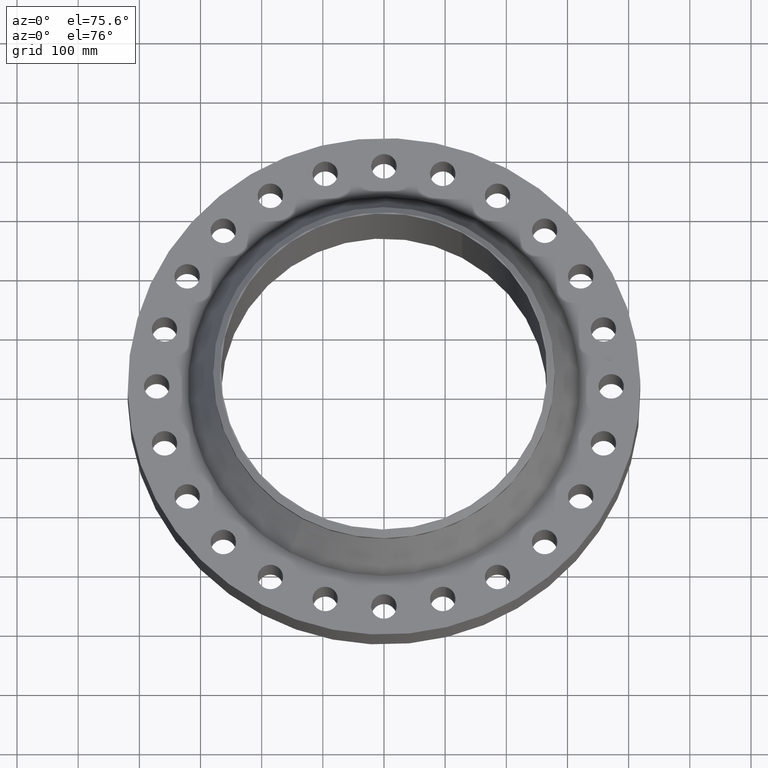
[diagram: clean part render]
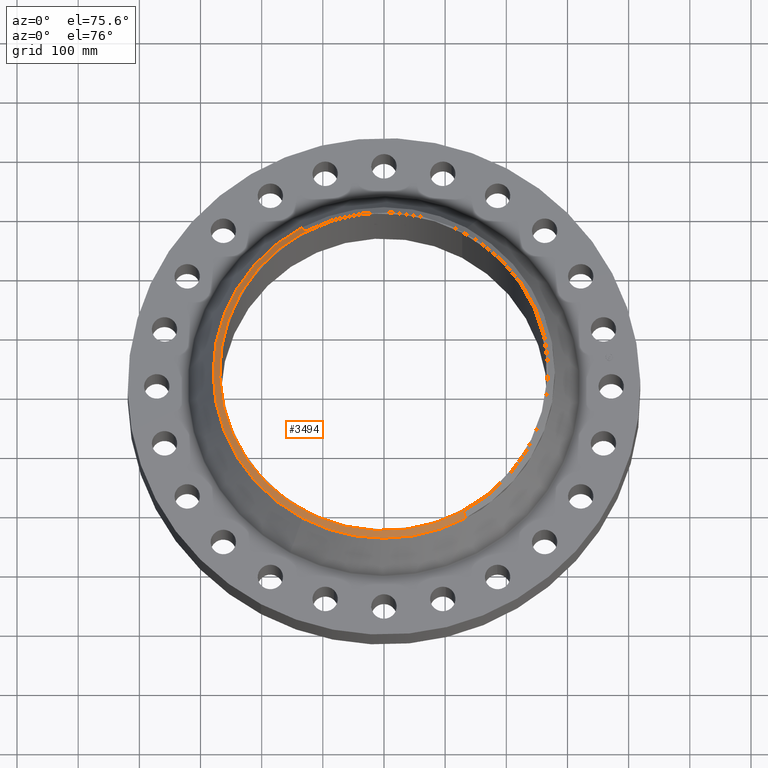
[diagram: same view with one face highlighted and labeled with its STEP entity id]
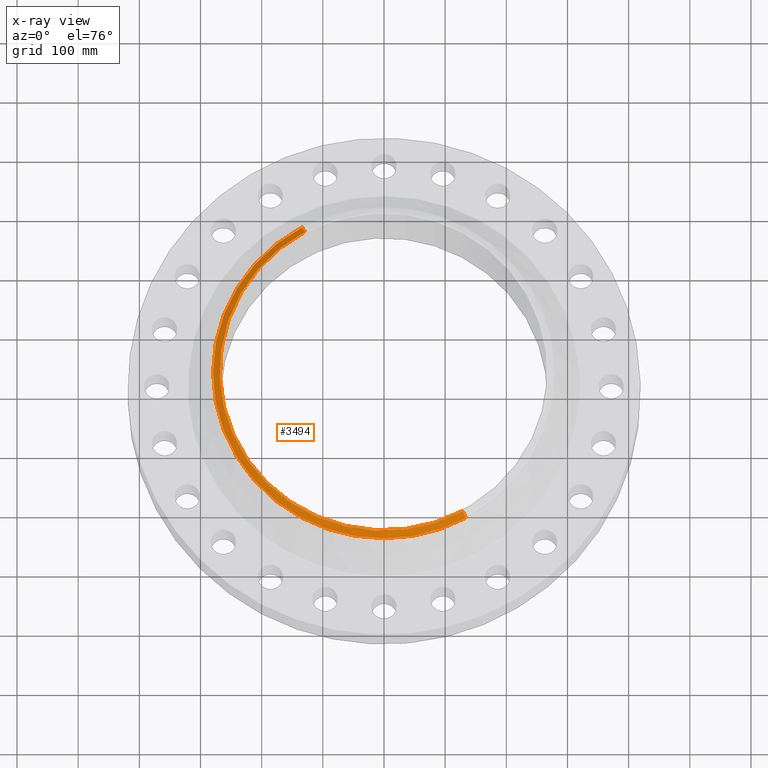
[diagram: x-ray of the same camera — body ghosted, the highlighted face saturated]
A machine part, auxiliary view. The second image highlights one B-rep face of the part: STEP entity #3494.
The next image is the same camera in x-ray: the body ghosted, the highlighted face saturated — about 0% of this face is hidden behind the body in this view.
In plain terms, the highlighted conical surface has half-angle 52.5 deg.
Its self-contained STEP definition (entity closure, byte-faithful):
#2822=AXIS2_PLACEMENT_3D('Circle Axis2P3D',#2820,#2821,$) ;
#2861=AXIS2_PLACEMENT_3D('Circle Axis2P3D',#2859,#2860,$) ;
#3453=AXIS2_PLACEMENT_3D('Circle Axis2P3D',#3451,#3452,$) ;
#3475=AXIS2_PLACEMENT_3D('Cone Axis2P3D',#3472,#3473,#3474) ;
#2817=CARTESIAN_POINT('Vertex',(-5.27368092465,-9.65340818079,6.1067559539)) ;
#2820=CARTESIAN_POINT('Axis2P3D Location',(0.,0.,6.1067559539)) ;
#2824=CARTESIAN_POINT('Vertex',(-5.27368092465,9.65340818079,6.1067559539)) ;
#2856=CARTESIAN_POINT('Vertex',(5.27368092465,-9.65340818079,6.1067559539)) ;
#2859=CARTESIAN_POINT('Axis2P3D Location',(0.,0.,6.1067559539)) ;
#3446=CARTESIAN_POINT('Vertex',(5.07171819777,-9.283717889,6.43000000002)) ;
#3448=CARTESIAN_POINT('Vertex',(-5.07171819777,9.28371788899,6.43000000003)) ;
#3451=CARTESIAN_POINT('Axis2P3D Location',(3.08546189473E-011,2.19317127888E-012,6.43000000003)) ;
#3472=CARTESIAN_POINT('Axis2P3D Location',(0.,0.,6.43000000003)) ;
#3477=CARTESIAN_POINT('Line Origine',(5.17269956122,-9.46856303491,6.26837797697)) ;
#3482=CARTESIAN_POINT('Line Origine',(-5.17269956122,9.46856303491,6.26837797697)) ;
#2821=DIRECTION('Axis2P3D Direction',(-0.,0.,-0.0393700787402)) ;
#2860=DIRECTION('Axis2P3D Direction',(-0.,0.,-0.0393700787402)) ;
#3452=DIRECTION('Axis2P3D Direction',(0.,0.,-0.0393700787402)) ;
#3473=DIRECTION('Axis2P3D Direction',(-0.,-0.,-0.0393700787402)) ;
#3474=DIRECTION('Axis2P3D XDirection',(0.0188750212049,-0.0345504945626,0.)) ;
#3478=DIRECTION('Vector Direction',(0.014974561121,-0.02741075027,-0.023966985394)) ;
#3483=DIRECTION('Vector Direction',(-0.014974561121,0.02741075027,-0.023966985394)) ;
#3479=VECTOR('Line Direction',#3478,0.0393700787402) ;
#3484=VECTOR('Line Direction',#3483,0.0393700787402) ;
#3488=ORIENTED_EDGE('',*,*,#3481,.F.) ;
#3489=ORIENTED_EDGE('',*,*,#3455,.F.) ;
#3490=ORIENTED_EDGE('',*,*,#3486,.T.) ;
#3491=ORIENTED_EDGE('',*,*,#2826,.T.) ;
#3492=ORIENTED_EDGE('',*,*,#2863,.F.) ;
#3494=ADVANCED_FACE('PartBody',(#3493),#3476,.T.) ;
#2823=CIRCLE('generated circle',#2822,11.) ;
#2862=CIRCLE('generated circle',#2861,11.) ;
#3454=CIRCLE('generated circle',#3453,10.5787401575) ;
#3476=CONICAL_SURFACE('Cone',#3475,10.5787401575,0.916297857297) ;
#2826=EDGE_CURVE('',#2825,#2818,#2823,.F.) ;
#2863=EDGE_CURVE('',#2857,#2818,#2862,.T.) ;
#3455=EDGE_CURVE('',#3449,#3447,#3454,.F.) ;
#3481=EDGE_CURVE('',#3447,#2857,#3480,.T.) ;
#3486=EDGE_CURVE('',#3449,#2825,#3485,.T.) ;
#3487=EDGE_LOOP('',(#3488,#3489,#3490,#3491,#3492)) ;
#3493=FACE_OUTER_BOUND('',#3487,.T.) ;
#3480=LINE('Line',#3477,#3479) ;
#3485=LINE('Line',#3482,#3484) ;
#2818=VERTEX_POINT('',#2817) ;
#2825=VERTEX_POINT('',#2824) ;
#2857=VERTEX_POINT('',#2856) ;
#3447=VERTEX_POINT('',#3446) ;
#3449=VERTEX_POINT('',#3448) ;